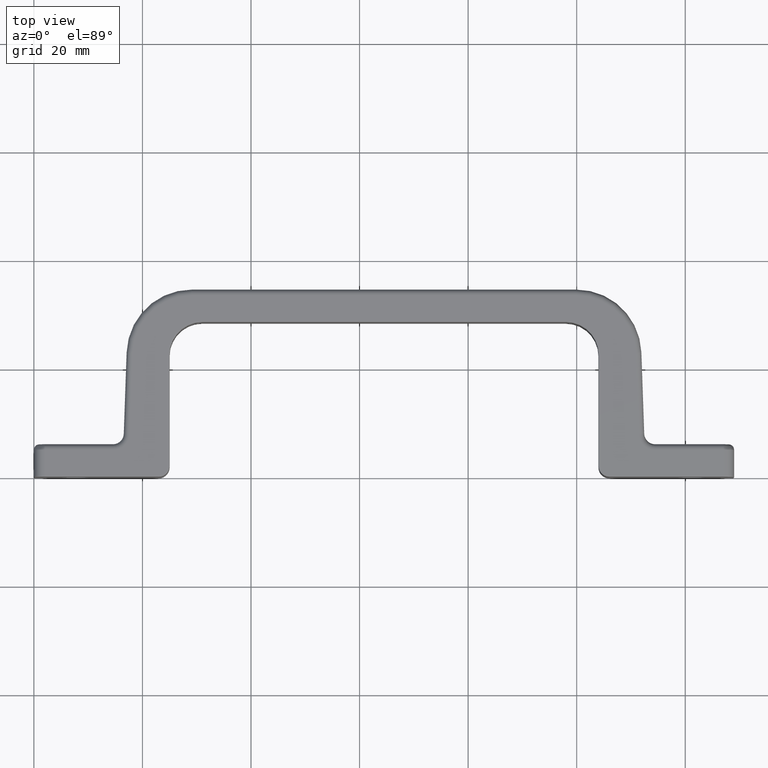
[diagram: clean part render]
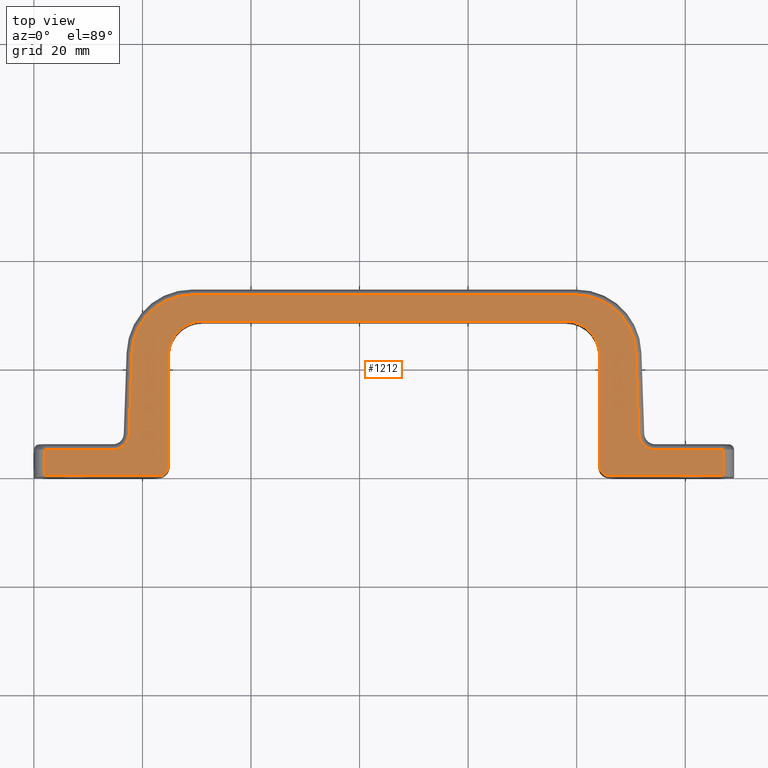
[diagram: same view with one face highlighted and labeled with its STEP entity id]
A machine part, top view. The second image highlights one B-rep face of the part: STEP entity #1212.
In plain terms, the highlighted planar face has unit normal (0, 0, 1).
Its self-contained STEP definition (entity closure, byte-faithful):
#42=PLANE('',#1390);
#49=LINE('',#1858,#121);
#50=LINE('',#1867,#122);
#58=LINE('',#1917,#130);
#60=LINE('',#1929,#132);
#74=LINE('',#2002,#146);
#87=LINE('',#2059,#159);
#89=LINE('',#2072,#161);
#90=LINE('',#2080,#162);
#98=LINE('',#2112,#170);
#99=LINE('',#2123,#171);
#101=LINE('',#2135,#173);
#114=LINE('',#2202,#186);
#121=VECTOR('',#1437,21.);
#122=VECTOR('',#1448,20.5);
#130=VECTOR('',#1510,14.9977291652174);
#132=VECTOR('',#1524,12.5686224503859);
#146=VECTOR('',#1592,4.8);
#159=VECTOR('',#1649,21.);
#161=VECTOR('',#1665,20.5);
#162=VECTOR('',#1676,67.);
#170=VECTOR('',#1720,70.8329855436006);
#171=VECTOR('',#1733,14.9977291652174);
#173=VECTOR('',#1747,12.5686224503859);
#186=VECTOR('',#1814,4.8);
#302=FACE_OUTER_BOUND('',#388,.T.);
#388=EDGE_LOOP('',(#1095,#1096,#1097,#1098,#1099,#1100,#1101,#1102,#1103,
#1104,#1105,#1106,#1107,#1108,#1109,#1110,#1111,#1112,#1113,#1114));
#394=CIRCLE('',#1222,1.8);
#407=CIRCLE('',#1243,6.2);
#419=CIRCLE('',#1263,11.);
#423=CIRCLE('',#1269,3.);
#447=CIRCLE('',#1308,1.8);
#460=CIRCLE('',#1330,6.2);
#471=CIRCLE('',#1353,11.);
#475=CIRCLE('',#1359,3.);
#495=VERTEX_POINT('',#1828);
#497=VERTEX_POINT('',#1831);
#505=VERTEX_POINT('',#1856);
#508=VERTEX_POINT('',#1866);
#511=VERTEX_POINT('',#1873);
#519=VERTEX_POINT('',#1905);
#521=VERTEX_POINT('',#1909);
#523=VERTEX_POINT('',#1914);
#525=VERTEX_POINT('',#1920);
#527=VERTEX_POINT('',#1926);
#546=VERTEX_POINT('',#2013);
#549=VERTEX_POINT('',#2018);
#563=VERTEX_POINT('',#2058);
#567=VERTEX_POINT('',#2070);
#569=VERTEX_POINT('',#2075);
#575=VERTEX_POINT('',#2110);
#577=VERTEX_POINT('',#2115);
#579=VERTEX_POINT('',#2121);
#581=VERTEX_POINT('',#2127);
#583=VERTEX_POINT('',#2133);
#598=EDGE_CURVE('',#497,#495,#394,.T.);
#612=EDGE_CURVE('',#495,#505,#49,.T.);
#615=EDGE_CURVE('',#508,#497,#50,.T.);
#620=EDGE_CURVE('',#511,#508,#407,.T.);
#637=EDGE_CURVE('',#519,#521,#419,.T.);
#640=EDGE_CURVE('',#523,#519,#58,.T.);
#643=EDGE_CURVE('',#525,#523,#423,.T.);
#646=EDGE_CURVE('',#527,#525,#60,.T.);
#675=EDGE_CURVE('',#505,#527,#74,.T.);
#683=EDGE_CURVE('',#549,#546,#447,.T.);
#703=EDGE_CURVE('',#546,#563,#87,.T.);
#709=EDGE_CURVE('',#567,#549,#89,.T.);
#711=EDGE_CURVE('',#569,#567,#460,.T.);
#713=EDGE_CURVE('',#569,#511,#90,.T.);
#729=EDGE_CURVE('',#521,#575,#98,.T.);
#731=EDGE_CURVE('',#577,#575,#471,.T.);
#734=EDGE_CURVE('',#579,#577,#99,.T.);
#737=EDGE_CURVE('',#581,#579,#475,.T.);
#740=EDGE_CURVE('',#583,#581,#101,.T.);
#766=EDGE_CURVE('',#563,#583,#114,.T.);
#1095=ORIENTED_EDGE('',*,*,#683,.F.);
#1096=ORIENTED_EDGE('',*,*,#709,.F.);
#1097=ORIENTED_EDGE('',*,*,#711,.F.);
#1098=ORIENTED_EDGE('',*,*,#713,.T.);
#1099=ORIENTED_EDGE('',*,*,#620,.T.);
#1100=ORIENTED_EDGE('',*,*,#615,.T.);
#1101=ORIENTED_EDGE('',*,*,#598,.T.);
#1102=ORIENTED_EDGE('',*,*,#612,.T.);
#1103=ORIENTED_EDGE('',*,*,#675,.T.);
#1104=ORIENTED_EDGE('',*,*,#646,.T.);
#1105=ORIENTED_EDGE('',*,*,#643,.T.);
#1106=ORIENTED_EDGE('',*,*,#640,.T.);
#1107=ORIENTED_EDGE('',*,*,#637,.T.);
#1108=ORIENTED_EDGE('',*,*,#729,.T.);
#1109=ORIENTED_EDGE('',*,*,#731,.F.);
#1110=ORIENTED_EDGE('',*,*,#734,.F.);
#1111=ORIENTED_EDGE('',*,*,#737,.F.);
#1112=ORIENTED_EDGE('',*,*,#740,.F.);
#1113=ORIENTED_EDGE('',*,*,#766,.F.);
#1114=ORIENTED_EDGE('',*,*,#703,.F.);
#1212=ADVANCED_FACE('',(#302),#42,.T.);
#1222=AXIS2_PLACEMENT_3D('',#1832,#1407,#1408);
#1243=AXIS2_PLACEMENT_3D('',#1876,#1458,#1459);
#1263=AXIS2_PLACEMENT_3D('',#1911,#1503,#1504);
#1269=AXIS2_PLACEMENT_3D('',#1923,#1517,#1518);
#1308=AXIS2_PLACEMENT_3D('',#2020,#1611,#1612);
#1330=AXIS2_PLACEMENT_3D('',#2077,#1670,#1671);
#1353=AXIS2_PLACEMENT_3D('',#2117,#1725,#1726);
#1359=AXIS2_PLACEMENT_3D('',#2129,#1739,#1740);
#1390=AXIS2_PLACEMENT_3D('',#2203,#1815,#1816);
#1407=DIRECTION('center_axis',(0.,0.,1.));
#1408=DIRECTION('ref_axis',(-0.707106781186547,-0.707106781186548,0.));
#1437=DIRECTION('',(1.,-5.78410183114228E-17,0.));
#1448=DIRECTION('',(1.97372982155583E-16,-1.,0.));
#1458=DIRECTION('center_axis',(0.,0.,-1.));
#1459=DIRECTION('ref_axis',(0.707106781186548,0.707106781186548,0.));
#1503=DIRECTION('center_axis',(0.,0.,1.));
#1504=DIRECTION('ref_axis',(0.694658370458997,0.719339800338652,0.));
#1510=DIRECTION('',(-0.0348994967025011,0.999390827019096,0.));
#1517=DIRECTION('center_axis',(0.,0.,-1.));
#1518=DIRECTION('ref_axis',(-0.694658370458997,-0.719339800338651,0.));
#1524=DIRECTION('',(-1.,6.72862439166762E-17,0.));
#1592=DIRECTION('',(-1.62923884365954E-32,1.,0.));
#1611=DIRECTION('center_axis',(0.,0.,-1.));
#1612=DIRECTION('ref_axis',(0.707106781186547,-0.707106781186548,0.));
#1649=DIRECTION('',(-1.,-5.78410183114228E-17,0.));
#1665=DIRECTION('',(-1.97372982155583E-16,-1.,0.));
#1670=DIRECTION('center_axis',(0.,0.,1.));
#1671=DIRECTION('ref_axis',(-0.707106781186548,0.707106781186548,0.));
#1676=DIRECTION('',(1.,0.,0.));
#1720=DIRECTION('',(-1.,0.,0.));
#1725=DIRECTION('center_axis',(0.,0.,-1.));
#1726=DIRECTION('ref_axis',(-0.694658370458997,0.719339800338652,0.));
#1733=DIRECTION('',(0.0348994967025011,0.999390827019096,0.));
#1739=DIRECTION('center_axis',(0.,0.,1.));
#1740=DIRECTION('ref_axis',(0.694658370458997,-0.719339800338651,0.));
#1747=DIRECTION('',(1.,6.72862439166762E-17,0.));
#1814=DIRECTION('',(1.62923884365954E-32,1.,0.));
#1815=DIRECTION('center_axis',(0.,0.,1.));
#1816=DIRECTION('ref_axis',(1.,0.,0.));
#1828=CARTESIAN_POINT('',(106.,0.200000000000001,9.));
#1831=CARTESIAN_POINT('',(104.2,2.,9.));
#1832=CARTESIAN_POINT('Origin',(106.,2.,9.));
#1856=CARTESIAN_POINT('',(127.,0.2,9.));
#1858=CARTESIAN_POINT('',(114.144792464115,0.200000000000001,9.));
#1866=CARTESIAN_POINT('',(104.2,22.5,9.));
#1867=CARTESIAN_POINT('',(104.2,9.81060214877426,9.));
#1873=CARTESIAN_POINT('',(98.,28.7,9.));
#1876=CARTESIAN_POINT('Origin',(98.,22.5,9.));
#1905=CARTESIAN_POINT('',(110.90979186901,22.8838944637275,9.));
#1909=CARTESIAN_POINT('',(99.9164927718003,33.5,9.));
#1911=CARTESIAN_POINT('Origin',(99.9164927718003,22.5,9.));
#1914=CARTESIAN_POINT('',(111.433205068557,7.8953015098925,9.));
#1917=CARTESIAN_POINT('',(110.959613749219,21.4571824830451,9.));
#1920=CARTESIAN_POINT('',(114.431377549614,5.,9.));
#1923=CARTESIAN_POINT('Origin',(114.431377549614,8.,9.));
#1926=CARTESIAN_POINT('',(127.,5.,9.));
#1929=CARTESIAN_POINT('',(105.894792464115,5.,9.));
#2002=CARTESIAN_POINT('',(127.,12.8106021487743,9.));
#2013=CARTESIAN_POINT('',(23.,0.200000000000001,9.));
#2018=CARTESIAN_POINT('',(24.8,2.,9.));
#2020=CARTESIAN_POINT('Origin',(23.,2.,9.));
#2058=CARTESIAN_POINT('',(2.,0.2,9.));
#2059=CARTESIAN_POINT('',(14.8552075358854,0.200000000000001,9.));
#2070=CARTESIAN_POINT('',(24.8,22.5,9.));
#2072=CARTESIAN_POINT('',(24.8,9.81060214877426,9.));
#2075=CARTESIAN_POINT('',(31.,28.7,9.));
#2077=CARTESIAN_POINT('Origin',(31.,22.5,9.));
#2080=CARTESIAN_POINT('',(98.6447924641146,28.7,9.));
#2110=CARTESIAN_POINT('',(29.0835072281997,33.5,9.));
#2112=CARTESIAN_POINT('',(81.8947924641146,33.5,9.));
#2115=CARTESIAN_POINT('',(18.0902081309896,22.8838944637275,9.));
#2117=CARTESIAN_POINT('Origin',(29.0835072281997,22.5,9.));
#2121=CARTESIAN_POINT('',(17.5667949314431,7.8953015098925,9.));
#2123=CARTESIAN_POINT('',(18.0403862507811,21.4571824830451,9.));
#2127=CARTESIAN_POINT('',(14.5686224503859,5.,9.));
#2129=CARTESIAN_POINT('Origin',(14.5686224503859,8.,9.));
#2133=CARTESIAN_POINT('',(2.,5.,9.));
#2135=CARTESIAN_POINT('',(23.1052075358854,5.,9.));
#2202=CARTESIAN_POINT('',(2.,12.8106021487743,9.));
#2203=CARTESIAN_POINT('Origin',(29.7104150717708,19.6212042975485,9.));